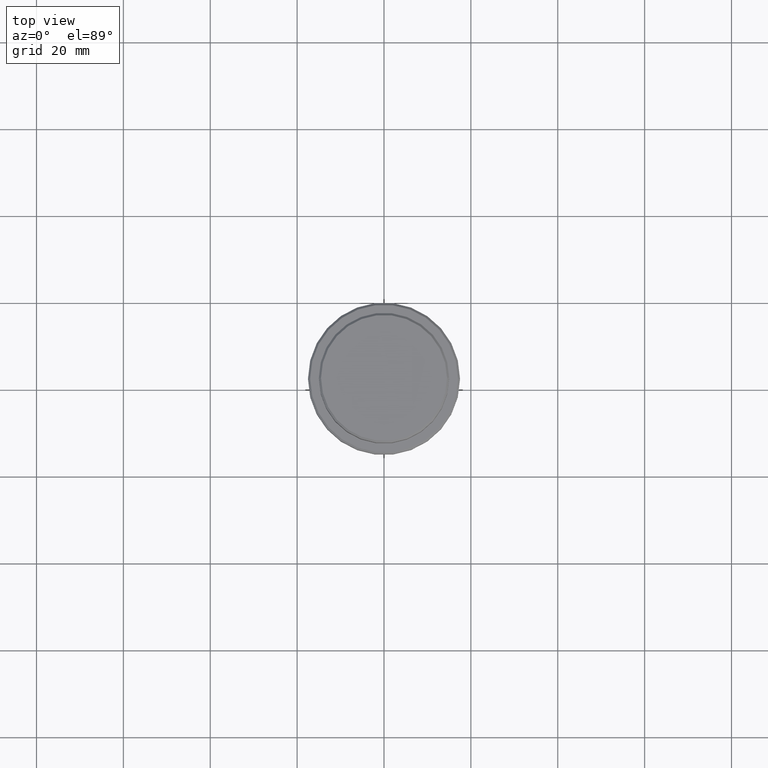
[diagram: clean part render]
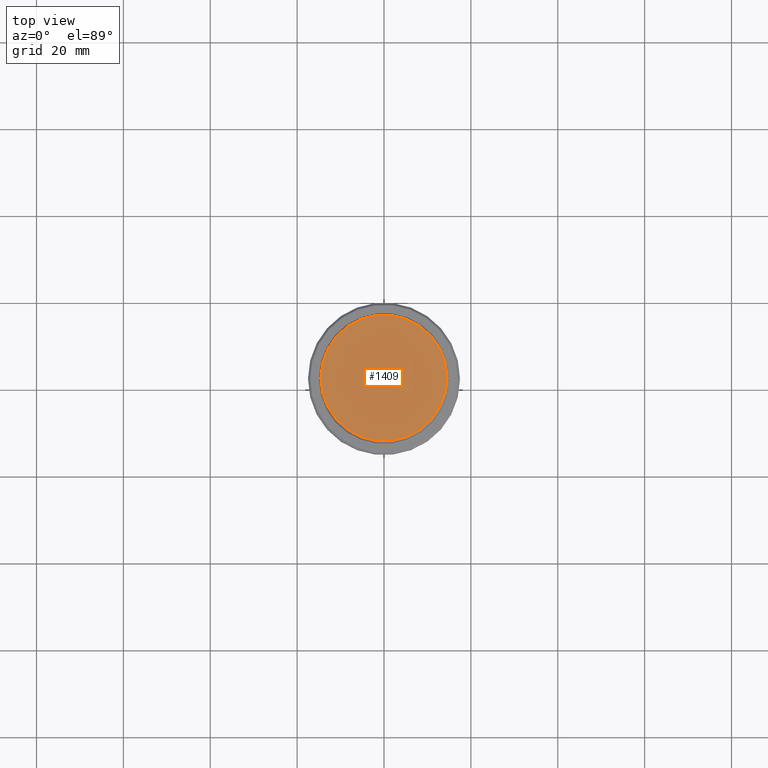
[diagram: same view with one face highlighted and labeled with its STEP entity id]
A machine part, top view. The second image highlights one B-rep face of the part: STEP entity #1409.
In plain terms, the highlighted planar face has unit normal (0, -0, 1).
Its self-contained STEP definition (entity closure, byte-faithful):
#61 = CARTESIAN_POINT ( 'NONE',  ( 0.000000000000000000, 0.000000000000000000, 0.000000000000000000 ) ) ;
#270 = DIRECTION ( 'NONE',  ( -0.000000000000000000, -0.000000000000000000, 1.000000000000000000 ) ) ;
#446 = EDGE_CURVE ( 'NONE', #496, #476, #1220, .T. ) ;
#476 = VERTEX_POINT ( 'NONE', #602 ) ;
#485 = CIRCLE ( 'NONE', #1045, 14.49999999999995559 ) ;
#486 = FACE_OUTER_BOUND ( 'NONE', #964, .T. ) ;
#496 = VERTEX_POINT ( 'NONE', #956 ) ;
#510 = DIRECTION ( 'NONE',  ( -0.000000000000000000, -0.000000000000000000, 1.000000000000000000 ) ) ;
#602 = CARTESIAN_POINT ( 'NONE',  ( -14.49999999999995559, 0.000000000000000000, 0.000000000000000000 ) ) ;
#606 = ORIENTED_EDGE ( 'NONE', *, *, #1278, .T. ) ;
#726 = PLANE ( 'NONE',  #1071 ) ;
#731 = CARTESIAN_POINT ( 'NONE',  ( 0.000000000000000000, 0.000000000000000000, 0.000000000000000000 ) ) ;
#742 = AXIS2_PLACEMENT_3D ( 'NONE', #731, #270, #1048 ) ;
#807 = ORIENTED_EDGE ( 'NONE', *, *, #446, .T. ) ;
#825 = DIRECTION ( 'NONE',  ( 1.000000000000000000, 0.000000000000000000, 0.000000000000000000 ) ) ;
#956 = CARTESIAN_POINT ( 'NONE',  ( 14.49999999999995559, 1.806354028742343041E-15, 0.000000000000000000 ) ) ;
#964 = EDGE_LOOP ( 'NONE', ( #606, #807 ) ) ;
#1045 = AXIS2_PLACEMENT_3D ( 'NONE', #61, #510, #1383 ) ;
#1048 = DIRECTION ( 'NONE',  ( 1.000000000000000000, 0.000000000000000000, 0.000000000000000000 ) ) ;
#1071 = AXIS2_PLACEMENT_3D ( 'NONE', #1373, #1358, #825 ) ;
#1220 = CIRCLE ( 'NONE', #742, 14.49999999999995559 ) ;
#1278 = EDGE_CURVE ( 'NONE', #476, #496, #485, .T. ) ;
#1358 = DIRECTION ( 'NONE',  ( 0.000000000000000000, -0.000000000000000000, 1.000000000000000000 ) ) ;
#1373 = CARTESIAN_POINT ( 'NONE',  ( 0.000000000000000000, 0.000000000000000000, 0.000000000000000000 ) ) ;
#1383 = DIRECTION ( 'NONE',  ( 1.000000000000000000, 0.000000000000000000, 0.000000000000000000 ) ) ;
#1409 = ADVANCED_FACE ( 'NONE', ( #486 ), #726, .T. ) ;